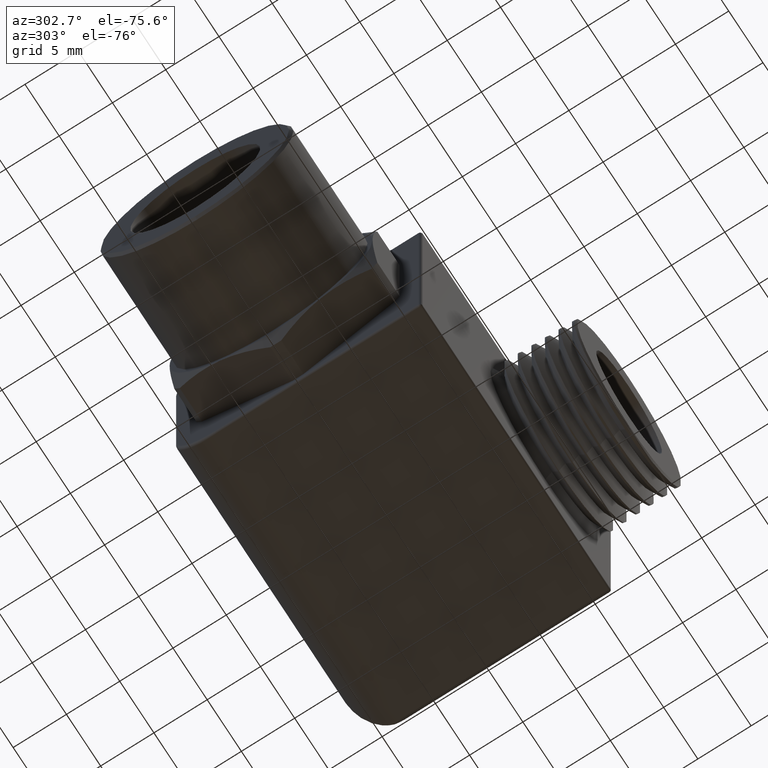
[diagram: clean part render]
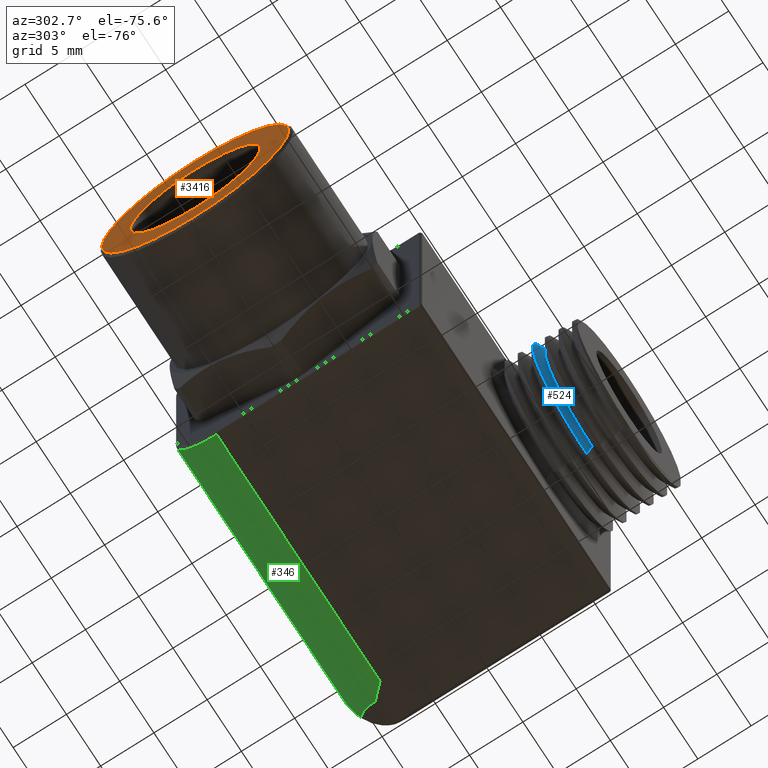
[diagram: same view with three faces highlighted in distinct colors, each labeled with its STEP entity id]
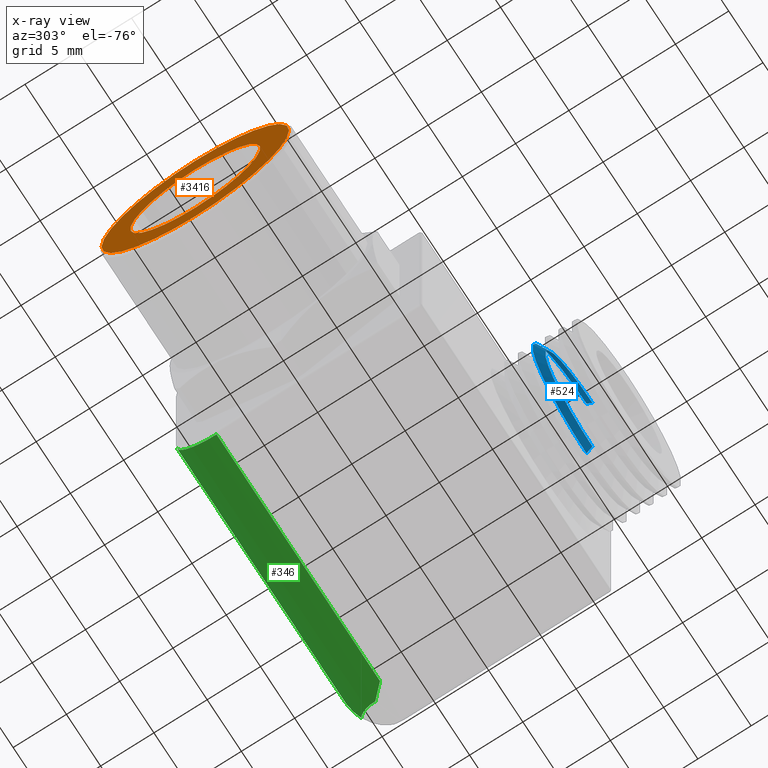
[diagram: x-ray of the same camera — body ghosted, the three highlighted faces saturated]
A machine part, auxiliary view with three faces highlighted in distinct colors.
The next image is the same camera in x-ray (body ghosted, the three faces saturated) — at least one of them is partly hidden behind the body in this view.
Their STEP definitions:

[orange] entity #3416 — the highlighted planar face has unit normal (1, 0, 0).
#57 = EDGE_CURVE ( 'NONE', #58, #59, #1150, .T. ) ;
#58 = VERTEX_POINT ( 'NONE', #1214 ) ;
#59 = VERTEX_POINT ( 'NONE', #1213 ) ;
#67 = VERTEX_POINT ( 'NONE', #1198 ) ;
#69 = EDGE_CURVE ( 'NONE', #67, #70, #1197, .T. ) ;
#70 = VERTEX_POINT ( 'NONE', #1192 ) ;
#1147 = DIRECTION ( 'NONE',  ( 0.0000000000000000000, 0.0000000000000000000, -1.000000000000000000 ) ) ;
#1148 = DIRECTION ( 'NONE',  ( -1.000000000000000000, 0.0000000000000000000, 0.0000000000000000000 ) ) ;
#1149 = AXIS2_PLACEMENT_3D ( 'NONE', #1157, #1148, #1147 ) ;
#1150 = CIRCLE ( 'NONE', #1149, 0.3462499999999996100 ) ;
#1157 = CARTESIAN_POINT ( 'NONE',  ( -0.9014999999999997500, 0.0000000000000000000, 0.0000000000000000000 ) ) ;
#1192 = CARTESIAN_POINT ( 'NONE',  ( -0.9014999999999999700, 0.0000000000000000000, 0.2400000000000000500 ) ) ;
#1193 = DIRECTION ( 'NONE',  ( 0.0000000000000000000, 0.0000000000000000000, 1.000000000000000000 ) ) ;
#1194 = DIRECTION ( 'NONE',  ( -1.000000000000000000, 0.0000000000000000000, 0.0000000000000000000 ) ) ;
#1195 = CARTESIAN_POINT ( 'NONE',  ( -0.9014999999999999700, 0.0000000000000000000, 0.0000000000000000000 ) ) ;
#1196 = AXIS2_PLACEMENT_3D ( 'NONE', #1195, #1194, #1193 ) ;
#1197 = CIRCLE ( 'NONE', #1196, 0.2400000000000000500 ) ;
#1198 = CARTESIAN_POINT ( 'NONE',  ( -0.9014999999999999700, 2.939152317953648000E-017, -0.2400000000000000500 ) ) ;
#1213 = CARTESIAN_POINT ( 'NONE',  ( -0.9014999999999997500, 0.0000000000000000000, -0.3462499999999996100 ) ) ;
#1214 = CARTESIAN_POINT ( 'NONE',  ( -0.9014999999999997500, 4.301571882005075700E-017, 0.3462499999999996100 ) ) ;
#3091 = DIRECTION ( 'NONE',  ( 0.0000000000000000000, 0.0000000000000000000, -1.000000000000000000 ) ) ;
#3092 = DIRECTION ( 'NONE',  ( -1.000000000000000000, 0.0000000000000000000, 0.0000000000000000000 ) ) ;
#3093 = CARTESIAN_POINT ( 'NONE',  ( -0.9014999999999997500, 0.0000000000000000000, 0.0000000000000000000 ) ) ;
#3094 = AXIS2_PLACEMENT_3D ( 'NONE', #3093, #3092, #3091 ) ;
#3095 = CIRCLE ( 'NONE', #3094, 0.3462499999999996100 ) ;
#3096 = DIRECTION ( 'NONE',  ( 0.0000000000000000000, 0.0000000000000000000, 1.000000000000000000 ) ) ;
#3097 = DIRECTION ( 'NONE',  ( -1.000000000000000000, 0.0000000000000000000, 0.0000000000000000000 ) ) ;
#3098 = CARTESIAN_POINT ( 'NONE',  ( -0.9014999999999999700, 0.0000000000000000000, 0.0000000000000000000 ) ) ;
#3099 = AXIS2_PLACEMENT_3D ( 'NONE', #3098, #3097, #3096 ) ;
#3100 = CIRCLE ( 'NONE', #3099, 0.2400000000000000500 ) ;
#3101 = DIRECTION ( 'NONE',  ( 0.0000000000000000000, 0.0000000000000000000, -1.000000000000000000 ) ) ;
#3102 = DIRECTION ( 'NONE',  ( 1.000000000000000000, 0.0000000000000000000, 0.0000000000000000000 ) ) ;
#3103 = CARTESIAN_POINT ( 'NONE',  ( -0.9014999999999997500, 0.3562499999999999000, 0.0000000000000000000 ) ) ;
#3104 = AXIS2_PLACEMENT_3D ( 'NONE', #3103, #3102, #3101 ) ;
#3105 = FACE_BOUND ( 'NONE', #3412, .T. ) ;
#3106 = FACE_OUTER_BOUND ( 'NONE', #3414, .T. ) ;
#3111 = PLANE ( 'NONE',  #3104 ) ;
#3410 = ORIENTED_EDGE ( 'NONE', *, *, #69, .F. ) ;
#3411 = ORIENTED_EDGE ( 'NONE', *, *, #3418, .F. ) ;
#3412 = EDGE_LOOP ( 'NONE', ( #3411, #3410 ) ) ;
#3413 = ORIENTED_EDGE ( 'NONE', *, *, #3421, .T. ) ;
#3414 = EDGE_LOOP ( 'NONE', ( #3413, #3420 ) ) ;
#3416 = ADVANCED_FACE ( 'NONE', ( #3106, #3105 ), #3111, .F. ) ;
#3418 = EDGE_CURVE ( 'NONE', #70, #67, #3100, .T. ) ;
#3420 = ORIENTED_EDGE ( 'NONE', *, *, #57, .T. ) ;
#3421 = EDGE_CURVE ( 'NONE', #59, #58, #3095, .T. ) ;

[blue] entity #524 — the highlighted conical surface has half-angle 60 deg.
#521 = EDGE_CURVE ( 'NONE', #729, #728, #2012, .T. ) ;
#524 = ADVANCED_FACE ( 'NONE', ( #2008 ), #2007, .T. ) ;
#525 = EDGE_LOOP ( 'NONE', ( #526, #527, #578, #579 ) ) ;
#526 = ORIENTED_EDGE ( 'NONE', *, *, #734, .F. ) ;
#527 = ORIENTED_EDGE ( 'NONE', *, *, #521, .F. ) ;
#578 = ORIENTED_EDGE ( 'NONE', *, *, #740, .T. ) ;
#579 = ORIENTED_EDGE ( 'NONE', *, *, #829, .F. ) ;
#728 = VERTEX_POINT ( 'NONE', #2413 ) ;
#729 = VERTEX_POINT ( 'NONE', #2412 ) ;
#734 = EDGE_CURVE ( 'NONE', #728, #735, #2407, .T. ) ;
#735 = VERTEX_POINT ( 'NONE', #2403 ) ;
#738 = VERTEX_POINT ( 'NONE', #2461 ) ;
#740 = EDGE_CURVE ( 'NONE', #729, #738, #2460, .T. ) ;
#829 = EDGE_CURVE ( 'NONE', #735, #738, #2604, .T. ) ;
#2002 = DIRECTION ( 'NONE',  ( 0.0000000000000000000, 0.0000000000000000000, 1.000000000000000000 ) ) ;
#2003 = DIRECTION ( 'NONE',  ( 0.0000000000000000000, 1.000000000000000000, 0.0000000000000000000 ) ) ;
#2004 = CARTESIAN_POINT ( 'NONE',  ( 0.4040250000000001900, -0.6296824456956907600, -2.785979454945908300E-017 ) ) ;
#2005 = AXIS2_PLACEMENT_3D ( 'NONE', #2004, #2003, #2002 ) ;
#2007 = CONICAL_SURFACE ( 'NONE', #2005, 0.2722487499999999800, 1.047197551196595900 ) ;
#2008 = FACE_OUTER_BOUND ( 'NONE', #525, .T. ) ;
#2009 = DIRECTION ( 'NONE',  ( 0.0000000000000000000, 0.0000000000000000000, -1.000000000000000000 ) ) ;
#2010 = DIRECTION ( 'NONE',  ( 0.0000000000000000000, -1.000000000000000000, 0.0000000000000000000 ) ) ;
#2011 = AXIS2_PLACEMENT_3D ( 'NONE', #2016, #2010, #2009 ) ;
#2012 = CIRCLE ( 'NONE', #2011, 0.2722487499999999800 ) ;
#2016 = CARTESIAN_POINT ( 'NONE',  ( 0.4040250000000001900, -0.6296824456956907600, -2.785979454945908300E-017 ) ) ;
#2403 = CARTESIAN_POINT ( 'NONE',  ( 0.4040250000000003000, -0.6073025787491204100, -0.3110118166180910700 ) ) ;
#2404 = DIRECTION ( 'NONE',  ( 1.060575238724905900E-016, 0.5000000000000016700, -0.8660254037844377100 ) ) ;
#2405 = VECTOR ( 'NONE', #2404, 39.37007874015748100 ) ;
#2406 = CARTESIAN_POINT ( 'NONE',  ( 0.4040250000000001900, -0.6296824456956907600, -0.2722487500000000400 ) ) ;
#2407 = LINE ( 'NONE', #2406, #2405 ) ;
#2412 = CARTESIAN_POINT ( 'NONE',  ( 0.4040250000000001900, -0.6296824456956907600, 0.2722487499999999300 ) ) ;
#2413 = CARTESIAN_POINT ( 'NONE',  ( 0.4040250000000001900, -0.6296824456956907600, -0.2722487500000000400 ) ) ;
#2457 = DIRECTION ( 'NONE',  ( 0.0000000000000000000, 0.5000000000000016700, 0.8660254037844377100 ) ) ;
#2458 = VECTOR ( 'NONE', #2457, 39.37007874015748100 ) ;
#2459 = CARTESIAN_POINT ( 'NONE',  ( 0.4040250000000001900, -0.6296824456956907600, 0.2722487499999999300 ) ) ;
#2460 = LINE ( 'NONE', #2459, #2458 ) ;
#2461 = CARTESIAN_POINT ( 'NONE',  ( 0.4040250000000001900, -0.6073025787491204100, 0.3110118166180910700 ) ) ;
#2600 = DIRECTION ( 'NONE',  ( 0.0000000000000000000, 0.0000000000000000000, 1.000000000000000000 ) ) ;
#2601 = DIRECTION ( 'NONE',  ( 0.0000000000000000000, 1.000000000000000000, 0.0000000000000000000 ) ) ;
#2602 = CARTESIAN_POINT ( 'NONE',  ( 0.4040250000000001900, -0.6073025787491204100, -2.785979454945908300E-017 ) ) ;
#2603 = AXIS2_PLACEMENT_3D ( 'NONE', #2602, #2601, #2600 ) ;
#2604 = CIRCLE ( 'NONE', #2603, 0.3110118166180910700 ) ;

[green] entity #346 — the highlighted cylindrical surface (partial cylindrical patch) has radius 3.7465 mm, axis along (1, 0, 0).
#172 = VERTEX_POINT ( 'NONE', #1434 ) ;
#174 = EDGE_CURVE ( 'NONE', #172, #175, #1431, .T. ) ;
#175 = VERTEX_POINT ( 'NONE', #1433 ) ;
#268 = EDGE_CURVE ( 'NONE', #175, #269, #1651, .T. ) ;
#269 = VERTEX_POINT ( 'NONE', #1650 ) ;
#271 = ORIENTED_EDGE ( 'NONE', *, *, #174, .F. ) ;
#272 = ORIENTED_EDGE ( 'NONE', *, *, #3471, .F. ) ;
#273 = ORIENTED_EDGE ( 'NONE', *, *, #274, .T. ) ;
#274 = EDGE_CURVE ( 'NONE', #3475, #549, #1641, .T. ) ;
#275 = ORIENTED_EDGE ( 'NONE', *, *, #1183, .F. ) ;
#331 = ORIENTED_EDGE ( 'NONE', *, *, #343, .T. ) ;
#343 = EDGE_CURVE ( 'NONE', #709, #269, #1763, .T. ) ;
#346 = ADVANCED_FACE ( 'NONE', ( #1765 ), #1764, .T. ) ;
#347 = EDGE_LOOP ( 'NONE', ( #348, #271, #272, #273, #275, #331 ) ) ;
#348 = ORIENTED_EDGE ( 'NONE', *, *, #268, .F. ) ;
#549 = VERTEX_POINT ( 'NONE', #2037 ) ;
#709 = VERTEX_POINT ( 'NONE', #2386 ) ;
#1183 = EDGE_CURVE ( 'NONE', #709, #549, #3000, .T. ) ;
#1427 = CARTESIAN_POINT ( 'NONE',  ( 0.6901666666666668200, 0.3566666666666666300, -0.4465643336333543500 ) ) ;
#1428 = CARTESIAN_POINT ( 'NONE',  ( 0.6743373204177951500, 0.3408373204177950200, -0.4521608526705179200 ) ) ;
#1429 = CARTESIAN_POINT ( 'NONE',  ( 0.6577895571114901200, 0.3242895571114902100, -0.4550000000000000200 ) ) ;
#1430 = CARTESIAN_POINT ( 'NONE',  ( 0.6409999999999997900, 0.3075000000000000000, -0.4550000000000000200 ) ) ;
#1431 =( BOUNDED_CURVE ( )  B_SPLINE_CURVE ( 3, ( #1430, #1429, #1428, #1427 ),
 .UNSPECIFIED., .F., .T. ) 
 B_SPLINE_CURVE_WITH_KNOTS ( ( 4, 4 ),
 ( 4.712388980384689700, 5.052225889838810600 ),
 .UNSPECIFIED. ) 
 CURVE ( )  GEOMETRIC_REPRESENTATION_ITEM ( )  RATIONAL_B_SPLINE_CURVE ( ( 1.000000000000000000, 0.9903990397689925700, 0.9903990397689925700, 1.000000000000000000 ) ) 
 REPRESENTATION_ITEM ( '' )  );
#1433 = CARTESIAN_POINT ( 'NONE',  ( 0.6901666666666668200, 0.3566666666666666300, -0.4465643336333543500 ) ) ;
#1434 = CARTESIAN_POINT ( 'NONE',  ( 0.6409999999999997900, 0.3075000000000000000, -0.4550000000000000200 ) ) ;
#1638 = DIRECTION ( 'NONE',  ( 0.0000000000000000000, 0.0000000000000000000, -1.000000000000000000 ) ) ;
#1639 = DIRECTION ( 'NONE',  ( 1.000000000000000000, 0.0000000000000000000, 0.0000000000000000000 ) ) ;
#1640 = AXIS2_PLACEMENT_3D ( 'NONE', #1652, #1639, #1638 ) ;
#1641 = CIRCLE ( 'NONE', #1640, 0.1474999999999999900 ) ;
#1642 = CARTESIAN_POINT ( 'NONE',  ( 0.7230617478217206100, 0.4300647565348391100, -0.3895617478217202600 ) ) ;
#1643 = CARTESIAN_POINT ( 'NONE',  ( 0.7141739829084088300, 0.4221408473058228500, -0.4013966408289769700 ) ) ;
#1644 = CARTESIAN_POINT ( 'NONE',  ( 0.7060765522608896100, 0.4120066008092622700, -0.4127728218896289900 ) ) ;
#1645 = CARTESIAN_POINT ( 'NONE',  ( 0.6971026298922025100, 0.3935805845397226700, -0.4275346601012712200 ) ) ;
#1646 = CARTESIAN_POINT ( 'NONE',  ( 0.6945940891134276800, 0.3867680561163972000, -0.4321640011973514300 ) ) ;
#1647 = CARTESIAN_POINT ( 'NONE',  ( 0.6911422295326274900, 0.3723471729041453700, -0.4402380204814935200 ) ) ;
#1648 = CARTESIAN_POINT ( 'NONE',  ( 0.6901666666666664800, 0.3647379555830720900, -0.4437107020705011200 ) ) ;
#1649 = CARTESIAN_POINT ( 'NONE',  ( 0.6901666666666668200, 0.3566666666666666300, -0.4465643336333543500 ) ) ;
#1650 = CARTESIAN_POINT ( 'NONE',  ( 0.7230617478217206100, 0.4300647565348391100, -0.3895617478217202600 ) ) ;
#1651 = B_SPLINE_CURVE_WITH_KNOTS ( 'NONE', 3,
 ( #1649, #1648, #1647, #1646, #1645, #1644, #1643, #1642 ),
 .UNSPECIFIED., .F., .F.,
 ( 4, 2, 2, 4 ),
 ( 0.0000000000000000000, 0.0006411589484994911500, 0.001282317896998982300, 0.002564635793997968100 ),
 .UNSPECIFIED. ) ;
#1652 = CARTESIAN_POINT ( 'NONE',  ( -0.2998999999999999400, 0.3075000000000000000, -0.3075000000000000000 ) ) ;
#1754 = DIRECTION ( 'NONE',  ( 0.0000000000000000000, 0.0000000000000000000, -1.000000000000000000 ) ) ;
#1755 = DIRECTION ( 'NONE',  ( 1.000000000000000000, 0.0000000000000000000, 0.0000000000000000000 ) ) ;
#1756 = CARTESIAN_POINT ( 'NONE',  ( -0.3098999999999999500, 0.3075000000000000000, -0.3075000000000000000 ) ) ;
#1758 = AXIS2_PLACEMENT_3D ( 'NONE', #1756, #1755, #1754 ) ;
#1759 = CARTESIAN_POINT ( 'NONE',  ( 0.7230617478217206100, 0.4300647565348391100, -0.3895617478217202600 ) ) ;
#1760 = CARTESIAN_POINT ( 'NONE',  ( 0.6986015309971781400, 0.4464417983653724600, -0.3651015309971777900 ) ) ;
#1761 = CARTESIAN_POINT ( 'NONE',  ( 0.6704365369264575500, 0.4550000000000000700, -0.3369365369264571400 ) ) ;
#1762 = CARTESIAN_POINT ( 'NONE',  ( 0.6410000000000003500, 0.4550000000000000200, -0.3075000000000000000 ) ) ;
#1763 =( BOUNDED_CURVE ( )  B_SPLINE_CURVE ( 3, ( #1762, #1761, #1760, #1759 ),
 .UNSPECIFIED., .F., .T. ) 
 B_SPLINE_CURVE_WITH_KNOTS ( ( 4, 4 ),
 ( 1.570796326794896800, 2.160784063366742100 ),
 .UNSPECIFIED. ) 
 CURVE ( )  GEOMETRIC_REPRESENTATION_ITEM ( )  RATIONAL_B_SPLINE_CURVE ( ( 1.000000000000000000, 0.9712026166911058600, 0.9712026166911058600, 1.000000000000000000 ) ) 
 REPRESENTATION_ITEM ( '' )  );
#1764 = CYLINDRICAL_SURFACE ( 'NONE', #1758, 0.1474999999999999900 ) ;
#1765 = FACE_OUTER_BOUND ( 'NONE', #347, .T. ) ;
#2037 = CARTESIAN_POINT ( 'NONE',  ( -0.2998999999999999400, 0.4550000000000000200, -0.3075000000000000000 ) ) ;
#2386 = CARTESIAN_POINT ( 'NONE',  ( 0.6410000000000003500, 0.4550000000000000200, -0.3075000000000000000 ) ) ;
#2999 = CARTESIAN_POINT ( 'NONE',  ( -0.3098999999999999500, 0.4550000000000000200, -0.3075000000000000000 ) ) ;
#3000 = LINE ( 'NONE', #2999, #3050 ) ;
#3049 = DIRECTION ( 'NONE',  ( -1.000000000000000000, 0.0000000000000000000, 0.0000000000000000000 ) ) ;
#3050 = VECTOR ( 'NONE', #3049, 39.37007874015748100 ) ;
#3166 = CARTESIAN_POINT ( 'NONE',  ( -0.2999000000000000000, 0.3075000000000000000, -0.4550000000000000200 ) ) ;
#3171 = DIRECTION ( 'NONE',  ( 1.000000000000000000, 0.0000000000000000000, 0.0000000000000000000 ) ) ;
#3172 = VECTOR ( 'NONE', #3171, 39.37007874015748100 ) ;
#3173 = CARTESIAN_POINT ( 'NONE',  ( 0.7885000000000003100, 0.3075000000000000000, -0.4550000000000000200 ) ) ;
#3174 = LINE ( 'NONE', #3173, #3172 ) ;
#3471 = EDGE_CURVE ( 'NONE', #3475, #172, #3174, .T. ) ;
#3475 = VERTEX_POINT ( 'NONE', #3166 ) ;